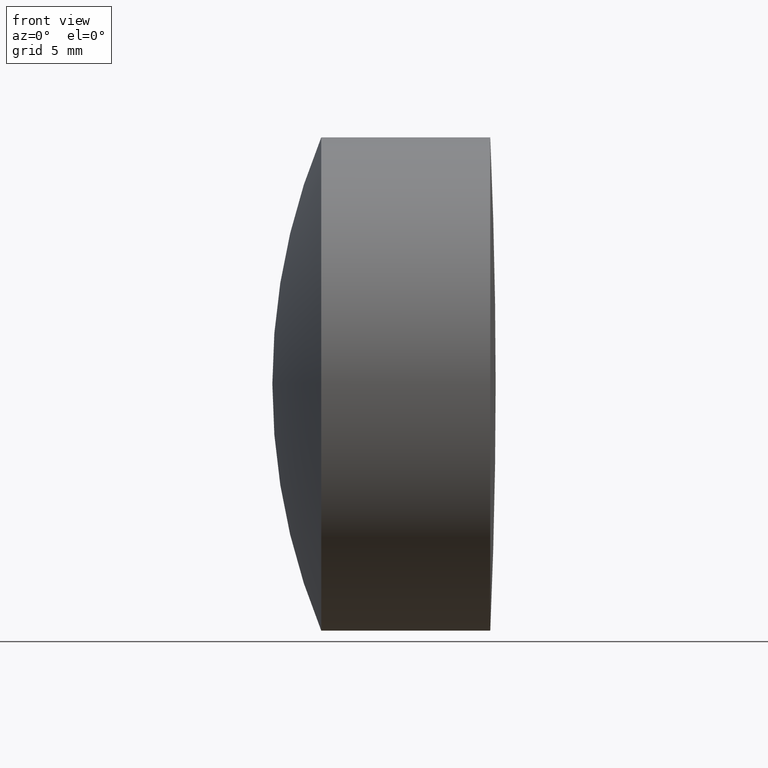
[diagram: clean part render]
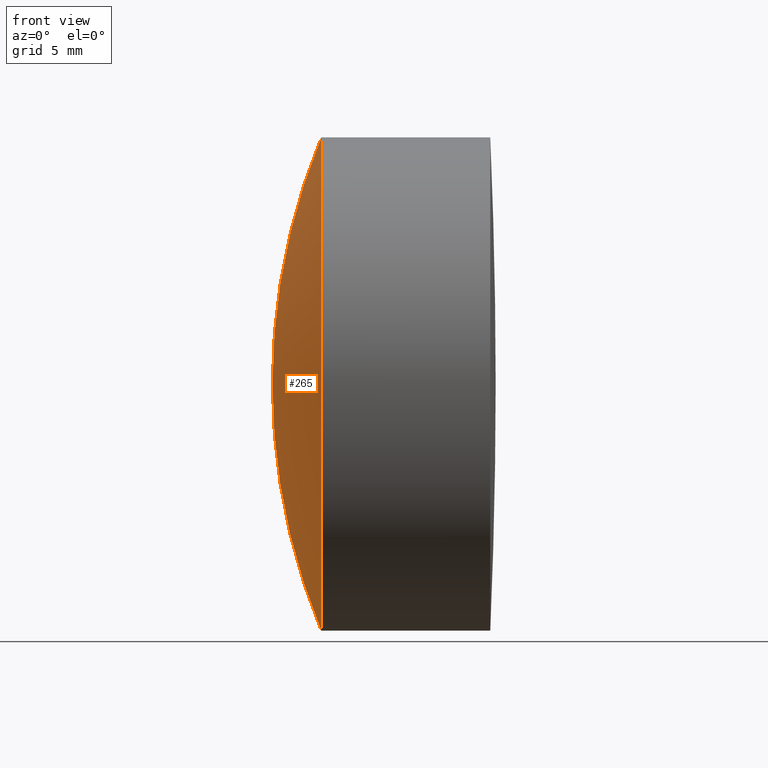
[diagram: same view with one face highlighted and labeled with its STEP entity id]
A machine part, front view. The second image highlights one B-rep face of the part: STEP entity #265.
In plain terms, the highlighted spherical surface has radius 33.3 mm.
Its self-contained STEP definition (entity closure, byte-faithful):
#28 = CARTESIAN_POINT ( 'NONE',  ( 226.9127335551075600, 1.555301434917138200E-015, -12.70000000000000100 ) ) ;
#39 = FACE_OUTER_BOUND ( 'NONE', #289, .T. ) ;
#52 = AXIS2_PLACEMENT_3D ( 'NONE', #288, #71, #225 ) ;
#61 = AXIS2_PLACEMENT_3D ( 'NONE', #153, #83, #82 ) ;
#68 = VERTEX_POINT ( 'NONE', #210 ) ;
#71 = DIRECTION ( 'NONE',  ( 0.0000000000000000000, 1.000000000000000000, 0.0000000000000000000 ) ) ;
#79 = ORIENTED_EDGE ( 'NONE', *, *, #127, .F. ) ;
#82 = DIRECTION ( 'NONE',  ( 0.0000000000000000000, 0.0000000000000000000, -1.000000000000000000 ) ) ;
#83 = DIRECTION ( 'NONE',  ( 0.0000000000000000000, -1.000000000000000000, 0.0000000000000000000 ) ) ;
#84 = ORIENTED_EDGE ( 'NONE', *, *, #168, .T. ) ;
#93 = DIRECTION ( 'NONE',  ( -1.000000000000000000, -0.0000000000000000000, -0.0000000000000000000 ) ) ;
#95 = ORIENTED_EDGE ( 'NONE', *, *, #324, .T. ) ;
#103 = CARTESIAN_POINT ( 'NONE',  ( 224.3958458084194700, 0.0000000000000000000, -1.654376558981438700E-015 ) ) ;
#105 = VERTEX_POINT ( 'NONE', #28 ) ;
#124 = CARTESIAN_POINT ( 'NONE',  ( 226.9127335551075600, 0.0000000000000000000, 0.0000000000000000000 ) ) ;
#127 = EDGE_CURVE ( 'NONE', #105, #224, #344, .T. ) ;
#153 = CARTESIAN_POINT ( 'NONE',  ( 257.6958458084194500, 0.0000000000000000000, -3.693413479561779400E-015 ) ) ;
#155 = DIRECTION ( 'NONE',  ( 0.0000000000000000000, 0.0000000000000000000, 1.000000000000000000 ) ) ;
#168 = EDGE_CURVE ( 'NONE', #68, #224, #320, .T. ) ;
#196 = CARTESIAN_POINT ( 'NONE',  ( 257.6958458084194500, 0.0000000000000000000, -3.693413479561779400E-015 ) ) ;
#210 = CARTESIAN_POINT ( 'NONE',  ( 226.9127335551075600, 0.0000000000000000000, 12.69999999999999800 ) ) ;
#224 = VERTEX_POINT ( 'NONE', #103 ) ;
#225 = DIRECTION ( 'NONE',  ( 0.0000000000000000000, 0.0000000000000000000, 1.000000000000000000 ) ) ;
#230 = DIRECTION ( 'NONE',  ( 0.0000000000000000000, -1.224646799147353200E-016, 1.000000000000000000 ) ) ;
#231 = DIRECTION ( 'NONE',  ( -0.0000000000000000000, 1.000000000000000000, 1.224646799147353200E-016 ) ) ;
#242 = AXIS2_PLACEMENT_3D ( 'NONE', #196, #231, #230 ) ;
#265 = ADVANCED_FACE ( 'NONE', ( #39 ), #342, .T. ) ;
#288 = CARTESIAN_POINT ( 'NONE',  ( 257.6958458084194500, 0.0000000000000000000, -3.693413479561779400E-015 ) ) ;
#289 = EDGE_LOOP ( 'NONE', ( #79, #95, #84 ) ) ;
#291 = AXIS2_PLACEMENT_3D ( 'NONE', #124, #93, #155 ) ;
#302 = CIRCLE ( 'NONE', #291, 12.69999999999999600 ) ;
#320 = CIRCLE ( 'NONE', #61, 33.29999999999996900 ) ;
#324 = EDGE_CURVE ( 'NONE', #105, #68, #302, .T. ) ;
#342 = SPHERICAL_SURFACE ( 'NONE', #52, 33.29999999999996900 ) ;
#344 = CIRCLE ( 'NONE', #242, 33.29999999999996900 ) ;